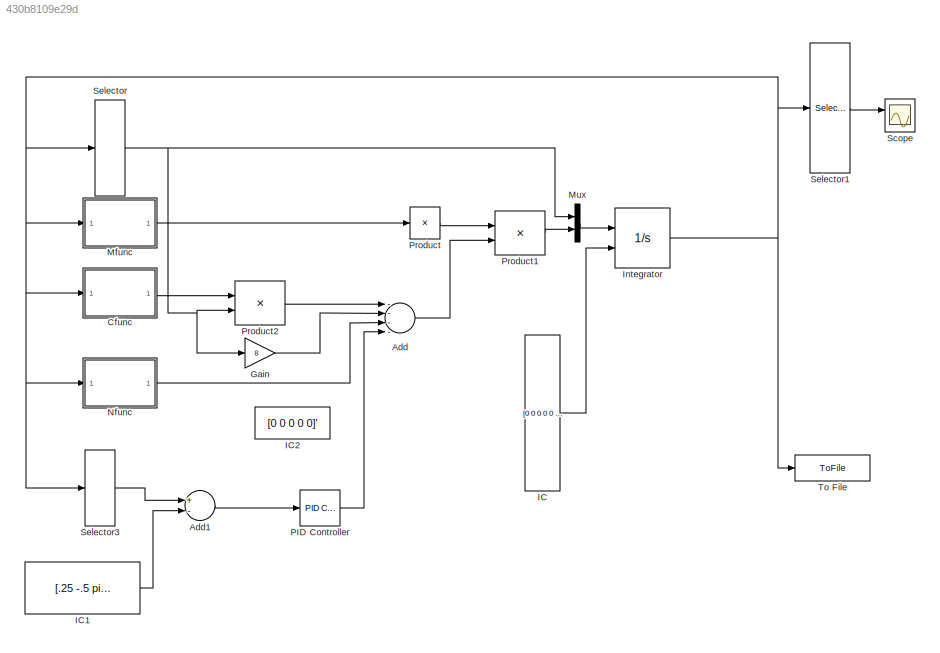
MODEL slx_430b8109e29d
KIND model
CONFIG AbsTol = auto
CONFIG EnableMultiTasking = off
CONFIG FixedStep = auto
CONFIG MaxStep = auto
CONFIG MinStep = auto
CONFIG RelTol = 1e-3
CONFIG SampleTimeConstraint = Unconstrained
CONFIG Solver = VariableStepAuto
CONFIG SolverName = VariableStepAuto
CONFIG StartTime = 0.0
CONFIG StopTime = 10.0
BLOCK [Sum] Add
  InputSameDT = off
  Inputs = ----
  OutDataTypeStr = Inherit: Inherit via internal rule
  Ports = [4, 1]
  SaturateOnIntegerOverflow = off
BLOCK [Sum] Add1
  InputSameDT = off
  Inputs = +-
  OutDataTypeStr = Inherit: Inherit via internal rule
  Ports = [2, 1]
  SaturateOnIntegerOverflow = off
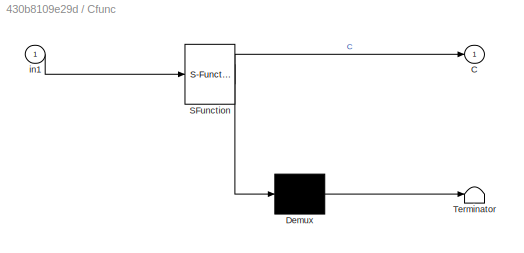
BLOCK [SubSystem] Cfunc
  ErrorFcn = Stateflow.Translate.translate
  PermitHierarchicalResolution = ExplicitOnly
  Ports = [1, 1]
  RequestExecContextInheritance = off
  SFBlockType = MATLAB Function
  TreatAsAtomicUnit = on
BLOCK [Demux] Cfunc/ Demux 
  Outputs = 1
  Ports = [1, 1]
BLOCK [S-Function] Cfunc/ SFunction 
  EnableBusSupport = on
  FunctionName = sf_sfun
  PortCounts = [1 2]
  Ports = [1, 2]
  SFcnIsStateOwnerBlock = off
  SFunctionDeploymentMode = off
  Tag = Stateflow S-Function mobilebot_Model 1
BLOCK [Terminator] Cfunc/ Terminator 
BLOCK [Outport] Cfunc/C
  IconDisplay = Port number
BLOCK [Inport] Cfunc/in1
  IconDisplay = Port number
BLOCK [Gain] Gain
  Gain = 8
  OutDataTypeStr = Inherit: Inherit via internal rule
  ParamDataTypeStr = Inherit: Inherit via internal rule
  SaturateOnIntegerOverflow = off
BLOCK [Constant] IC
  Value = [0 0 0 0 0 0 0 0 0 0]'
  VectorParams1D = off
BLOCK [Constant] IC1
  Value = [.25 -.5 pi pi pi/2 ]'
  VectorParams1D = off
BLOCK [Constant] IC2
  Value = [0 0 0 0 0]'
  VectorParams1D = off
BLOCK [Integrator] Integrator
  InitialConditionSource = external
  Ports = [2, 1]
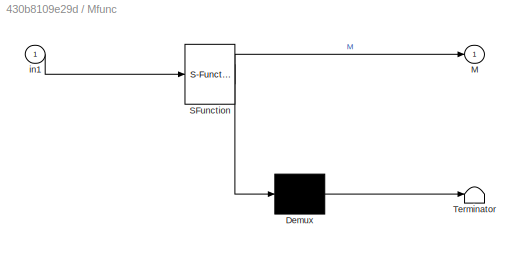
BLOCK [SubSystem] Mfunc
  ErrorFcn = Stateflow.Translate.translate
  PermitHierarchicalResolution = ExplicitOnly
  Ports = [1, 1]
  RequestExecContextInheritance = off
  SFBlockType = MATLAB Function
  TreatAsAtomicUnit = on
BLOCK [Demux] Mfunc/ Demux 
  Outputs = 1
  Ports = [1, 1]
BLOCK [S-Function] Mfunc/ SFunction 
  EnableBusSupport = on
  FunctionName = sf_sfun
  PortCounts = [1 2]
  Ports = [1, 2]
  SFcnIsStateOwnerBlock = off
  SFunctionDeploymentMode = off
  Tag = Stateflow S-Function mobilebot_Model 2
BLOCK [Terminator] Mfunc/ Terminator 
BLOCK [Outport] Mfunc/M
  IconDisplay = Port number
BLOCK [Inport] Mfunc/in1
  IconDisplay = Port number
BLOCK [Mux] Mux
  DisplayOption = bar
  Inputs = 2
  Ports = [2, 1]
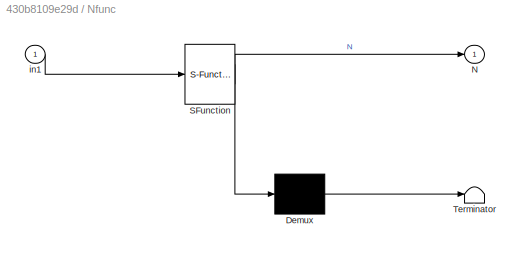
BLOCK [SubSystem] Nfunc
  ErrorFcn = Stateflow.Translate.translate
  PermitHierarchicalResolution = ExplicitOnly
  Ports = [1, 1]
  RequestExecContextInheritance = off
  SFBlockType = MATLAB Function
  TreatAsAtomicUnit = on
BLOCK [Demux] Nfunc/ Demux 
  Outputs = 1
  Ports = [1, 1]
BLOCK [S-Function] Nfunc/ SFunction 
  EnableBusSupport = on
  FunctionName = sf_sfun
  PortCounts = [1 2]
  Ports = [1, 2]
  SFcnIsStateOwnerBlock = off
  SFunctionDeploymentMode = off
  Tag = Stateflow S-Function mobilebot_Model 3
BLOCK [Terminator] Nfunc/ Terminator 
BLOCK [Outport] Nfunc/N
  IconDisplay = Port number
BLOCK [Inport] Nfunc/in1
  IconDisplay = Port number
BLOCK [Reference] PID Controller  REF=simulink/Continuous/PID Controller
  Ports = [1, 1]
  SourceBlock = simulink/Continuous/PID Controller
  SourceProductBaseCode = SL
  SourceProductName = Simulink
  SourceType = PID 1dof
BLOCK [Product] Product
  InputSameDT = off
  Inputs = /
  Multiplication = Matrix(*)
  OutDataTypeStr = Inherit: Inherit via internal rule
  Ports = [1, 1]
  RndMeth = Floor
  SaturateOnIntegerOverflow = off
BLOCK [Product] Product1
  InputSameDT = off
  Inputs = **
  Multiplication = Matrix(*)
  OutDataTypeStr = Inherit: Inherit via internal rule
  Ports = [2, 1]
  RndMeth = Floor
  SaturateOnIntegerOverflow = off
BLOCK [Product] Product2
  InputSameDT = off
  Inputs = **
  Multiplication = Matrix(*)
  OutDataTypeStr = Inherit: Inherit via internal rule
  Ports = [2, 1]
  RndMeth = Floor
  SaturateOnIntegerOverflow = off
BLOCK [Scope] Scope
  Floating = off
  NumInputPorts = 2
  Ports = [2]
  ScopeSpecificationString = Simulink.scopes.TimeScopeBlockCfg('CurrentConfiguration', extmgr.ConfigurationSet(extmgr.Configuration('Core','General UI',true),extmgr.Configuration('Core','Source UI',true),extmgr.Configuration('Sources','WiredSimulink',true),extmgr.Configuration('Visuals','Time Domain',true,'SerializedDisplays',{struct('MinYLimReal','-1.36036','MaxYLimReal','3.93366','YLabelReal','','MinYLimMag','0.00000','MaxY...<+1427ch>
BLOCK [Selector] Selector
  IndexOptions = Index vector (dialog)
  Indices = [6 7 8 9 10]
  InputPortWidth = 10
  OutputSizes = 1
  Ports = [1, 1]
BLOCK [Selector] Selector1
  IndexOptions = Index vector (dialog)
  Indices = [1 2 3 4 5]
  InputPortWidth = 10
  OutputSizes = 1
  Ports = [1, 1]
BLOCK [Selector] Selector3
  IndexOptions = Index vector (dialog)
  Indices = [1 2 3 4 5]
  InputPortWidth = 10
  OutputSizes = 1
  Ports = [1, 1]
BLOCK [ToFile] To File
  Filename = sim_mobilebot.mat
  Ports = [1]
  SampleTime = 1/30
LINE Add1:1 -> PID Controller:1
LINE Add:1 -> Product1:2
LINE Cfunc:1 -> Product2:1
LINE Gain:1 -> Add:2
LINE IC1:1 -> Add1:2
LINE IC:1 -> Integrator:2
NET Integrator:1 -> Cfunc:1, Mfunc:1, Nfunc:1, Selector1:1, Selector3:1, Selector:1, To File:1
LINE Mfunc:1 -> Product:1
LINE Mux:1 -> Integrator:1
LINE Nfunc:1 -> Add:3
LINE PID Controller:1 -> Add:4
LINE Product1:1 -> Mux:2
LINE Product2:1 -> Add:1
LINE Product:1 -> Product1:1
LINE Selector1:1 -> Scope:1
LINE Selector3:1 -> Add1:1
NET Selector:1 -> Gain:1, Mux:1, Product2:2
note: NET lines group one-source signal fan-out (src -> all destinations, sorted); 1:1 wires keep LINE
CHART Cfunc states=1 transitions=1
  STATE_LABEL 'eML_blk_kernel()'
  STATE_LABEL 'SCRIPT:\nfunction C = Cfunc(in1)\n%#codegen\n\n%    This function was generated by the Symbolic Math Toolbox version 8.1.\n%    08-May-2018 14:55:47\n\nth3 = in1(3,:);\nth4 = in1(4,:);\nth5 = in1(5,:);\nth3d = in1(8,:);\nth4d = in1(9,:);\nth5d = in1(10,:);\nt2 = cos(th3);\nt3 = cos(th4);\nt4 = sin(th3);\nt5 = cos(th5);\nt6 = sin(th4);\nt7 = sin(th5);\nt8 = t2.*t3.*t7.*th3d.*(2.7e1./8.0);\nt9 = t2.*t5.*t6.*th3d.*(2.7e...<+1998ch>'
CHART Mfunc states=1 transitions=1
  STATE_LABEL 'eML_blk_kernel()'
  STATE_LABEL 'SCRIPT:\nfunction M = Mfunc(in1)\n%#codegen\n\n%    This function was generated by the Symbolic Math Toolbox version 8.1.\n%    08-May-2018 14:55:47\n\nth3 = in1(3,:);\nth4 = in1(4,:);\nth5 = in1(5,:);\nt2 = cos(th3);\nt3 = cos(th4);\nt4 = sin(th3);\nt5 = sin(th4);\nt6 = th4+th5;\nt7 = sin(t6);\nt8 = sin(th5);\nt9 = cos(th5);\nt10 = t5.*3.0;\nt11 = t7+t10;\nt12 = t2.*t5.*t8.*(2.7e1./8.0);\nt13 = t4.*(-2.7e1./1.0e1)+t1...<+694ch>'
CHART Nfunc states=1 transitions=1
  STATE_LABEL 'eML_blk_kernel()'
  STATE_LABEL 'SCRIPT:\nfunction N = Nfunc(in1)\n%#codegen\n\n%    This function was generated by the Symbolic Math Toolbox version 8.1.\n%    08-May-2018 14:55:47\n\nth4 = in1(4,:);\nth5 = in1(5,:);\nt2 = th4+th5;\nt3 = cos(t2);\nN = [0.0;0.0;0.0;t3.*(-1.35e2./4.0)-cos(th4).*(4.05e2./4.0);t3.*(-1.35e2./4.0)];\n'
